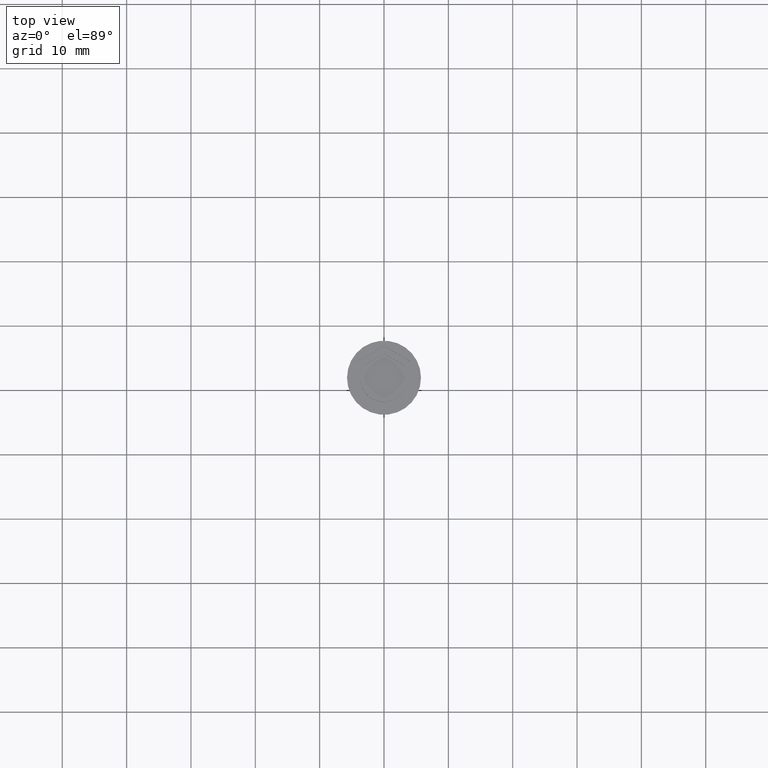
[diagram: clean part render]
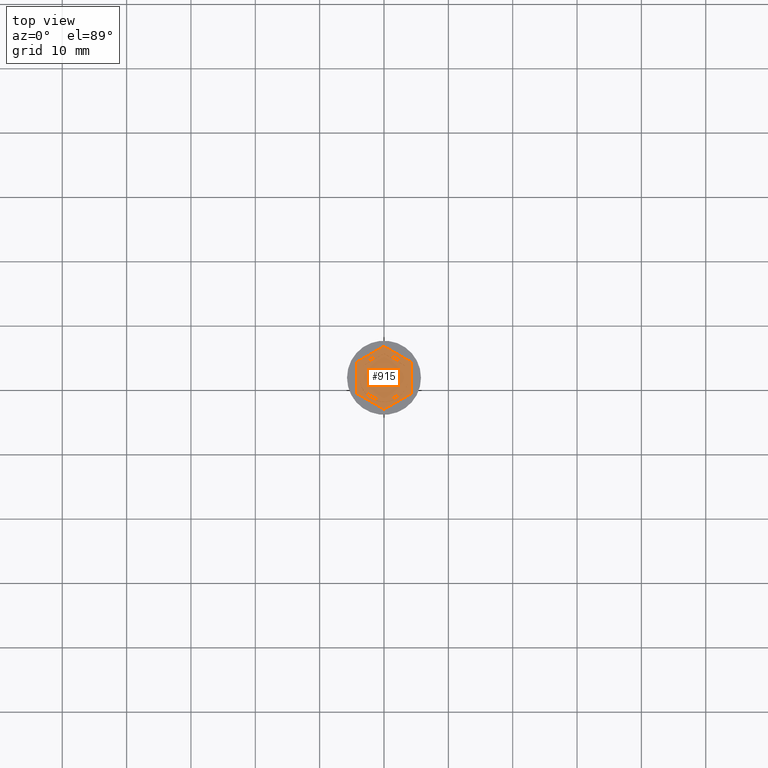
[diagram: same view with one face highlighted and labeled with its STEP entity id]
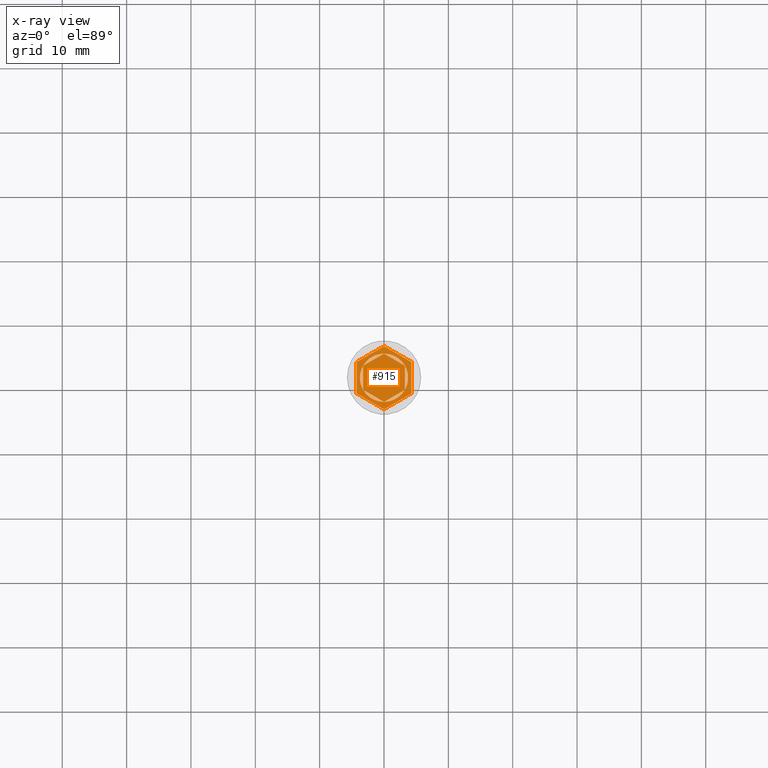
[diagram: x-ray of the same camera — body ghosted, the highlighted face saturated]
A machine part, top view. The second image highlights one B-rep face of the part: STEP entity #915.
The next image is the same camera in x-ray: the body ghosted, the highlighted face saturated — about 0% of this face is hidden behind the body in this view.
In plain terms, the highlighted planar face has unit normal (0, 0, 1).
Its self-contained STEP definition (entity closure, byte-faithful):
#54 = DIRECTION ( 'NONE',  ( 1.000000000000000000, 0.000000000000000000, 0.000000000000000000 ) ) ;
#97 = EDGE_CURVE ( 'NONE', #1652, #849, #1832, .T. ) ;
#107 = VECTOR ( 'NONE', #1976, 1000.000000000000114 ) ;
#111 = CARTESIAN_POINT ( 'NONE',  ( -4.250000000000000000, -2.453738644055909912, -1.000000000000000000 ) ) ;
#132 = CARTESIAN_POINT ( 'NONE',  ( 3.245185174601965983, -1.879168215605940606, -1.000000000000000888 ) ) ;
#134 = VERTEX_POINT ( 'NONE', #192 ) ;
#146 = CARTESIAN_POINT ( 'NONE',  ( 4.250000000000000000, -2.453738644055909912, -1.000000000000000000 ) ) ;
#152 = VERTEX_POINT ( 'NONE', #1105 ) ;
#158 = FACE_BOUND ( 'NONE', #1929, .T. ) ;
#161 = CARTESIAN_POINT ( 'NONE',  ( 3.249999999999999556, -1.870828693386972885, -1.000000000000000888 ) ) ;
#192 = CARTESIAN_POINT ( 'NONE',  ( -3.250000000000000444, 1.870828693386971331, -1.000000000000000888 ) ) ;
#198 = EDGE_LOOP ( 'NONE', ( #246, #439 ) ) ;
#201 = CARTESIAN_POINT ( 'NONE',  ( 4.250000000000000000, 2.453738644055909912, -1.000000000000000000 ) ) ;
#213 = DIRECTION ( 'NONE',  ( 0.000000000000000000, -1.000000000000000000, 0.000000000000000000 ) ) ;
#229 = DIRECTION ( 'NONE',  ( -0.8660254037844385966, -0.4999999999999999445, 0.000000000000000000 ) ) ;
#236 = VECTOR ( 'NONE', #1310, 999.9999999999998863 ) ;
#240 = DIRECTION ( 'NONE',  ( 1.000000000000000000, 0.000000000000000000, 0.000000000000000000 ) ) ;
#241 = EDGE_CURVE ( 'NONE', #1872, #2112, #1957, .T. ) ;
#246 = ORIENTED_EDGE ( 'NONE', *, *, #1331, .F. ) ;
#271 = AXIS2_PLACEMENT_3D ( 'NONE', #2063, #1906, #798 ) ;
#316 = VERTEX_POINT ( 'NONE', #1911 ) ;
#339 = CARTESIAN_POINT ( 'NONE',  ( 0.000000000000000000, 0.000000000000000000, -1.000000000000000000 ) ) ;
#343 = VERTEX_POINT ( 'NONE', #1014 ) ;
#349 = VERTEX_POINT ( 'NONE', #1763 ) ;
#352 = ORIENTED_EDGE ( 'NONE', *, *, #1718, .F. ) ;
#362 = VECTOR ( 'NONE', #923, 1000.000000000000000 ) ;
#366 = FACE_BOUND ( 'NONE', #697, .T. ) ;
#411 = DIRECTION ( 'NONE',  ( 0.000000000000000000, 0.000000000000000000, 1.000000000000000000 ) ) ;
#423 = CARTESIAN_POINT ( 'NONE',  ( 0.004814825398034546303, -3.749996908992911493, -1.000000000000000888 ) ) ;
#439 = ORIENTED_EDGE ( 'NONE', *, *, #1429, .F. ) ;
#452 = LINE ( 'NONE', #1150, #2305 ) ;
#468 = ORIENTED_EDGE ( 'NONE', *, *, #576, .F. ) ;
#479 = CIRCLE ( 'NONE', #1726, 3.750000000000000888 ) ;
#485 = AXIS2_PLACEMENT_3D ( 'NONE', #339, #1558, #1209 ) ;
#497 = VERTEX_POINT ( 'NONE', #201 ) ;
#549 = CARTESIAN_POINT ( 'NONE',  ( -3.250000000000000444, 1.876388374866283515, -1.000000000000000888 ) ) ;
#555 = FACE_OUTER_BOUND ( 'NONE', #945, .T. ) ;
#561 = EDGE_CURVE ( 'NONE', #497, #1311, #1673, .T. ) ;
#574 = DIRECTION ( 'NONE',  ( 0.000000000000000000, 0.000000000000000000, 1.000000000000000000 ) ) ;
#576 = EDGE_CURVE ( 'NONE', #134, #343, #479, .T. ) ;
#589 = ORIENTED_EDGE ( 'NONE', *, *, #1012, .F. ) ;
#594 = CARTESIAN_POINT ( 'NONE',  ( 0.000000000000000000, 4.907477288111818936, -1.000000000000000000 ) ) ;
#599 = AXIS2_PLACEMENT_3D ( 'NONE', #2260, #1020, #1030 ) ;
#625 = CARTESIAN_POINT ( 'NONE',  ( 4.250000000000000000, -2.453738644055909912, -1.000000000000000000 ) ) ;
#639 = CIRCLE ( 'NONE', #271, 3.750000000000000888 ) ;
#656 = CARTESIAN_POINT ( 'NONE',  ( 3.250000000000001332, 1.870828693386969777, -1.000000000000000888 ) ) ;
#659 = DIRECTION ( 'NONE',  ( 0.8660254037844387076, -0.4999999999999999445, 0.000000000000000000 ) ) ;
#683 = DIRECTION ( 'NONE',  ( 1.000000000000000000, 0.000000000000000000, 0.000000000000000000 ) ) ;
#685 = LINE ( 'NONE', #111, #2073 ) ;
#693 = CARTESIAN_POINT ( 'NONE',  ( 3.249999999999999556, -1.876388374866284403, -1.000000000000000888 ) ) ;
#697 = EDGE_LOOP ( 'NONE', ( #1820, #1206 ) ) ;
#706 = PLANE ( 'NONE',  #1125 ) ;
#721 = VERTEX_POINT ( 'NONE', #2079 ) ;
#735 = DIRECTION ( 'NONE',  ( -0.8660254037844385966, 0.5000000000000001110, 0.000000000000000000 ) ) ;
#798 = DIRECTION ( 'NONE',  ( 1.000000000000000000, 0.000000000000000000, 0.000000000000000000 ) ) ;
#813 = LINE ( 'NONE', #625, #1363 ) ;
#840 = EDGE_CURVE ( 'NONE', #1660, #1141, #1431, .T. ) ;
#849 = VERTEX_POINT ( 'NONE', #146 ) ;
#870 = FACE_BOUND ( 'NONE', #1856, .T. ) ;
#871 = EDGE_CURVE ( 'NONE', #877, #1652, #685, .T. ) ;
#877 = VERTEX_POINT ( 'NONE', #1187 ) ;
#897 = VECTOR ( 'NONE', #213, 1000.000000000000000 ) ;
#907 = FACE_BOUND ( 'NONE', #1041, .T. ) ;
#911 = CARTESIAN_POINT ( 'NONE',  ( 0.000000000000000000, 0.000000000000000000, -1.000000000000000000 ) ) ;
#915 = ADVANCED_FACE ( 'NONE', ( #366, #870, #158, #1099, #1974, #907, #555 ), #706, .T. ) ;
#923 = DIRECTION ( 'NONE',  ( 0.8660254037844385966, 0.5000000000000001110, 0.000000000000000000 ) ) ;
#928 = AXIS2_PLACEMENT_3D ( 'NONE', #2070, #411, #54 ) ;
#945 = EDGE_LOOP ( 'NONE', ( #1274, #1576, #989, #2052, #1681, #1113 ) ) ;
#987 = ORIENTED_EDGE ( 'NONE', *, *, #1602, .F. ) ;
#989 = ORIENTED_EDGE ( 'NONE', *, *, #1802, .T. ) ;
#1012 = EDGE_CURVE ( 'NONE', #1141, #1660, #2192, .T. ) ;
#1014 = CARTESIAN_POINT ( 'NONE',  ( -3.750000000000000888, 0.000000000000000000, -1.000000000000000000 ) ) ;
#1020 = DIRECTION ( 'NONE',  ( 0.000000000000000000, 0.000000000000000000, 1.000000000000000000 ) ) ;
#1025 = VERTEX_POINT ( 'NONE', #1260 ) ;
#1030 = DIRECTION ( 'NONE',  ( 1.000000000000000000, 0.000000000000000000, 0.000000000000000000 ) ) ;
#1041 = EDGE_LOOP ( 'NONE', ( #987, #2037 ) ) ;
#1056 = EDGE_CURVE ( 'NONE', #349, #1339, #1315, .T. ) ;
#1059 = DIRECTION ( 'NONE',  ( 0.8660254037844385966, 0.5000000000000001110, -0.000000000000000000 ) ) ;
#1079 = CARTESIAN_POINT ( 'NONE',  ( -3.250000000000000444, -1.876388374866283515, -1.000000000000000888 ) ) ;
#1084 = AXIS2_PLACEMENT_3D ( 'NONE', #1449, #1943, #683 ) ;
#1088 = VECTOR ( 'NONE', #1266, 1000.000000000000000 ) ;
#1099 = FACE_BOUND ( 'NONE', #198, .T. ) ;
#1105 = CARTESIAN_POINT ( 'NONE',  ( -0.004814825398034979984, 3.749996908992911937, -1.000000000000000888 ) ) ;
#1113 = ORIENTED_EDGE ( 'NONE', *, *, #1921, .T. ) ;
#1125 = AXIS2_PLACEMENT_3D ( 'NONE', #2006, #1643, #2329 ) ;
#1126 = CARTESIAN_POINT ( 'NONE',  ( 0.000000000000000000, 0.000000000000000000, -1.000000000000000000 ) ) ;
#1131 = ORIENTED_EDGE ( 'NONE', *, *, #1835, .F. ) ;
#1141 = VERTEX_POINT ( 'NONE', #656 ) ;
#1148 = ORIENTED_EDGE ( 'NONE', *, *, #1474, .F. ) ;
#1150 = CARTESIAN_POINT ( 'NONE',  ( 3.250000000000001332, 1.876388374866283959, -1.000000000000000888 ) ) ;
#1187 = CARTESIAN_POINT ( 'NONE',  ( -4.250000000000000000, -2.453738644055909912, -1.000000000000000000 ) ) ;
#1206 = ORIENTED_EDGE ( 'NONE', *, *, #2340, .F. ) ;
#1209 = DIRECTION ( 'NONE',  ( 1.000000000000000000, 0.000000000000000000, 0.000000000000000000 ) ) ;
#1213 = VERTEX_POINT ( 'NONE', #1755 ) ;
#1242 = VECTOR ( 'NONE', #1059, 1000.000000000000114 ) ;
#1260 = CARTESIAN_POINT ( 'NONE',  ( -0.004814825398034979984, -3.749996908992911937, -1.000000000000000888 ) ) ;
#1266 = DIRECTION ( 'NONE',  ( 0.000000000000000000, 1.000000000000000000, 0.000000000000000000 ) ) ;
#1274 = ORIENTED_EDGE ( 'NONE', *, *, #561, .T. ) ;
#1275 = VECTOR ( 'NONE', #735, 1000.000000000000114 ) ;
#1286 = LINE ( 'NONE', #594, #236 ) ;
#1310 = DIRECTION ( 'NONE',  ( -0.8660254037844387076, -0.4999999999999999445, 0.000000000000000000 ) ) ;
#1311 = VERTEX_POINT ( 'NONE', #2307 ) ;
#1315 = CIRCLE ( 'NONE', #2221, 3.750000000000000888 ) ;
#1331 = EDGE_CURVE ( 'NONE', #1213, #1025, #2150, .T. ) ;
#1339 = VERTEX_POINT ( 'NONE', #1433 ) ;
#1345 = DIRECTION ( 'NONE',  ( 0.000000000000000000, 1.000000000000000000, 0.000000000000000000 ) ) ;
#1363 = VECTOR ( 'NONE', #1345, 1000.000000000000000 ) ;
#1429 = EDGE_CURVE ( 'NONE', #1025, #1213, #2211, .T. ) ;
#1431 = CIRCLE ( 'NONE', #599, 3.750000000000000888 ) ;
#1433 = CARTESIAN_POINT ( 'NONE',  ( 0.004814825398034112622, 3.749996908992911493, -1.000000000000000888 ) ) ;
#1434 = EDGE_CURVE ( 'NONE', #1311, #316, #1286, .T. ) ;
#1449 = CARTESIAN_POINT ( 'NONE',  ( 0.000000000000000000, 0.000000000000000000, -1.000000000000000000 ) ) ;
#1454 = CARTESIAN_POINT ( 'NONE',  ( 0.000000000000000000, 3.752776749732567474, -1.000000000000000888 ) ) ;
#1455 = DIRECTION ( 'NONE',  ( 1.000000000000000000, 0.000000000000000000, 0.000000000000000000 ) ) ;
#1474 = EDGE_CURVE ( 'NONE', #343, #1924, #639, .T. ) ;
#1545 = VECTOR ( 'NONE', #2158, 1000.000000000000000 ) ;
#1558 = DIRECTION ( 'NONE',  ( 0.000000000000000000, 0.000000000000000000, 1.000000000000000000 ) ) ;
#1561 = DIRECTION ( 'NONE',  ( 0.000000000000000000, 0.000000000000000000, 1.000000000000000000 ) ) ;
#1576 = ORIENTED_EDGE ( 'NONE', *, *, #1434, .T. ) ;
#1602 = EDGE_CURVE ( 'NONE', #152, #721, #1768, .T. ) ;
#1643 = DIRECTION ( 'NONE',  ( 0.000000000000000000, 0.000000000000000000, 1.000000000000000000 ) ) ;
#1648 = CARTESIAN_POINT ( 'NONE',  ( 4.392932287340942424E-16, -4.907477288111819824, -1.000000000000000000 ) ) ;
#1652 = VERTEX_POINT ( 'NONE', #1777 ) ;
#1660 = VERTEX_POINT ( 'NONE', #161 ) ;
#1673 = LINE ( 'NONE', #1829, #107 ) ;
#1681 = ORIENTED_EDGE ( 'NONE', *, *, #97, .T. ) ;
#1718 = EDGE_CURVE ( 'NONE', #2112, #1872, #1842, .T. ) ;
#1726 = AXIS2_PLACEMENT_3D ( 'NONE', #911, #574, #1455 ) ;
#1755 = CARTESIAN_POINT ( 'NONE',  ( -3.245185174601965983, -1.879168215605940384, -1.000000000000000888 ) ) ;
#1763 = CARTESIAN_POINT ( 'NONE',  ( 3.245185174601965095, 1.879168215605940828, -1.000000000000000888 ) ) ;
#1768 = CIRCLE ( 'NONE', #485, 3.750000000000000888 ) ;
#1777 = CARTESIAN_POINT ( 'NONE',  ( 4.392932287340942424E-16, -4.907477288111819824, -1.000000000000000000 ) ) ;
#1802 = EDGE_CURVE ( 'NONE', #316, #877, #2011, .T. ) ;
#1803 = CARTESIAN_POINT ( 'NONE',  ( -2.168404344971008868E-16, -3.752776749732567474, -1.000000000000000888 ) ) ;
#1820 = ORIENTED_EDGE ( 'NONE', *, *, #1056, .F. ) ;
#1829 = CARTESIAN_POINT ( 'NONE',  ( 4.250000000000000000, 2.453738644055909912, -1.000000000000000000 ) ) ;
#1830 = CARTESIAN_POINT ( 'NONE',  ( -4.250000000000000000, 2.453738644055909468, -1.000000000000000000 ) ) ;
#1832 = LINE ( 'NONE', #1648, #362 ) ;
#1835 = EDGE_CURVE ( 'NONE', #1924, #134, #2170, .T. ) ;
#1842 = LINE ( 'NONE', #1803, #2189 ) ;
#1856 = EDGE_LOOP ( 'NONE', ( #2178, #589 ) ) ;
#1867 = ORIENTED_EDGE ( 'NONE', *, *, #241, .F. ) ;
#1872 = VERTEX_POINT ( 'NONE', #423 ) ;
#1906 = DIRECTION ( 'NONE',  ( 0.000000000000000000, 0.000000000000000000, 1.000000000000000000 ) ) ;
#1911 = CARTESIAN_POINT ( 'NONE',  ( -4.250000000000000000, 2.453738644055909468, -1.000000000000000000 ) ) ;
#1921 = EDGE_CURVE ( 'NONE', #849, #497, #813, .T. ) ;
#1924 = VERTEX_POINT ( 'NONE', #2068 ) ;
#1929 = EDGE_LOOP ( 'NONE', ( #1867, #352 ) ) ;
#1943 = DIRECTION ( 'NONE',  ( 0.000000000000000000, 0.000000000000000000, 1.000000000000000000 ) ) ;
#1957 = CIRCLE ( 'NONE', #928, 3.750000000000000888 ) ;
#1974 = FACE_BOUND ( 'NONE', #2341, .T. ) ;
#1976 = DIRECTION ( 'NONE',  ( -0.8660254037844387076, 0.4999999999999998335, 0.000000000000000000 ) ) ;
#2006 = CARTESIAN_POINT ( 'NONE',  ( 0.000000000000000000, 0.000000000000000000, -1.000000000000000000 ) ) ;
#2011 = LINE ( 'NONE', #1830, #897 ) ;
#2037 = ORIENTED_EDGE ( 'NONE', *, *, #2195, .F. ) ;
#2052 = ORIENTED_EDGE ( 'NONE', *, *, #871, .T. ) ;
#2063 = CARTESIAN_POINT ( 'NONE',  ( 0.000000000000000000, 0.000000000000000000, -1.000000000000000000 ) ) ;
#2068 = CARTESIAN_POINT ( 'NONE',  ( -3.250000000000000444, -1.870828693386971331, -1.000000000000000888 ) ) ;
#2070 = CARTESIAN_POINT ( 'NONE',  ( 0.000000000000000000, 0.000000000000000000, -1.000000000000000000 ) ) ;
#2073 = VECTOR ( 'NONE', #659, 1000.000000000000000 ) ;
#2079 = CARTESIAN_POINT ( 'NONE',  ( -3.245185174601965983, 1.879168215605940384, -1.000000000000000888 ) ) ;
#2112 = VERTEX_POINT ( 'NONE', #132 ) ;
#2150 = CIRCLE ( 'NONE', #1084, 3.750000000000000888 ) ;
#2158 = DIRECTION ( 'NONE',  ( -4.622506457652797323E-16, -1.000000000000000000, 0.000000000000000000 ) ) ;
#2168 = LINE ( 'NONE', #1454, #1242 ) ;
#2170 = LINE ( 'NONE', #549, #1088 ) ;
#2178 = ORIENTED_EDGE ( 'NONE', *, *, #840, .F. ) ;
#2189 = VECTOR ( 'NONE', #229, 1000.000000000000114 ) ;
#2192 = LINE ( 'NONE', #693, #1545 ) ;
#2195 = EDGE_CURVE ( 'NONE', #721, #152, #2168, .T. ) ;
#2205 = DIRECTION ( 'NONE',  ( 0.8660254037844387076, -0.4999999999999998890, 0.000000000000000000 ) ) ;
#2211 = LINE ( 'NONE', #1079, #1275 ) ;
#2221 = AXIS2_PLACEMENT_3D ( 'NONE', #1126, #1561, #240 ) ;
#2260 = CARTESIAN_POINT ( 'NONE',  ( 0.000000000000000000, 0.000000000000000000, -1.000000000000000000 ) ) ;
#2305 = VECTOR ( 'NONE', #2205, 1000.000000000000000 ) ;
#2307 = CARTESIAN_POINT ( 'NONE',  ( 0.000000000000000000, 4.907477288111818936, -1.000000000000000000 ) ) ;
#2329 = DIRECTION ( 'NONE',  ( 1.000000000000000000, 0.000000000000000000, -0.000000000000000000 ) ) ;
#2340 = EDGE_CURVE ( 'NONE', #1339, #349, #452, .T. ) ;
#2341 = EDGE_LOOP ( 'NONE', ( #468, #1131, #1148 ) ) ;